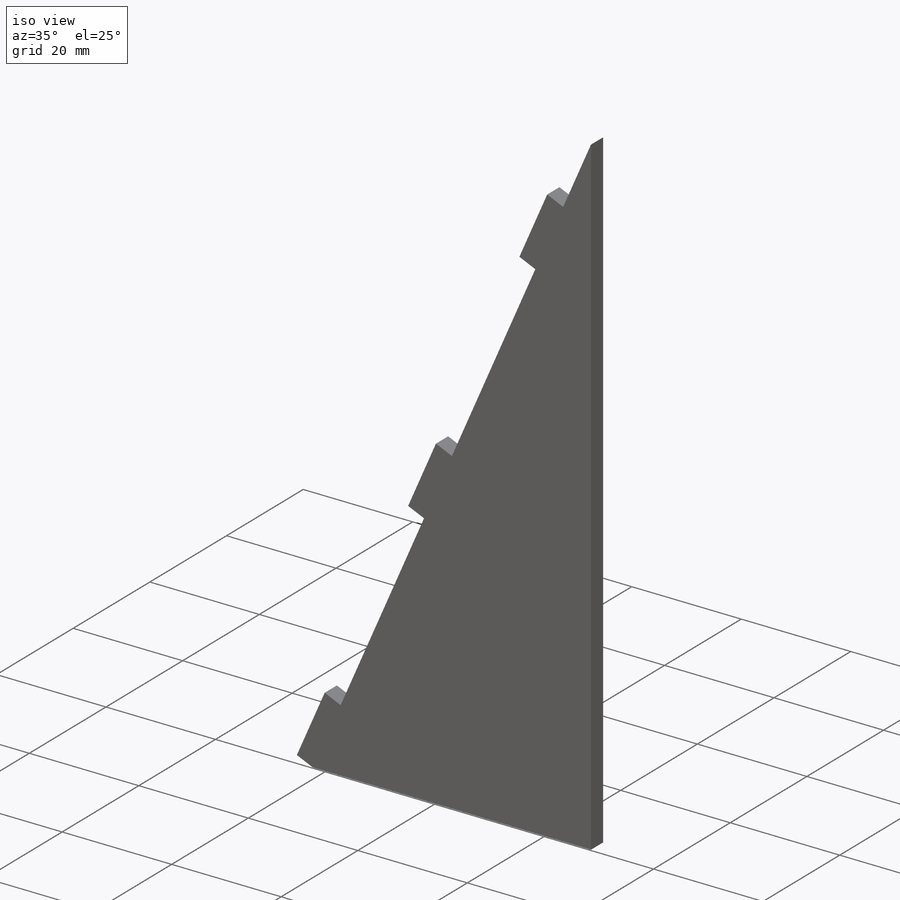
[diagram: iso view]
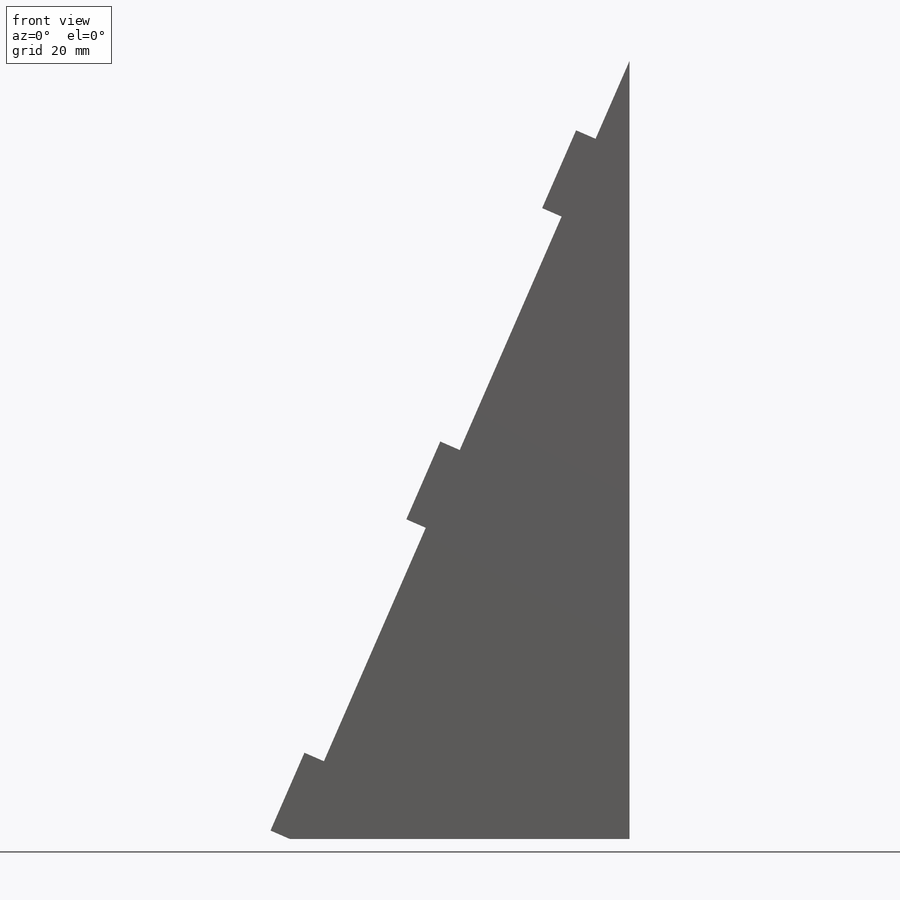
[diagram: front view]
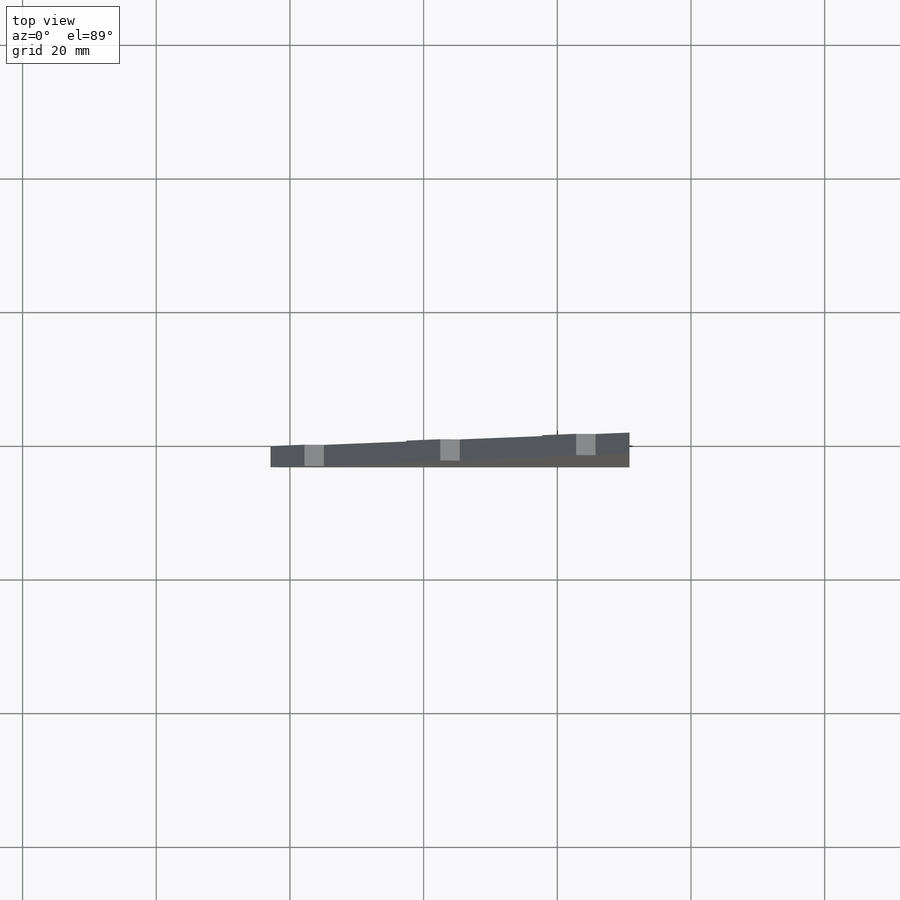
[diagram: top view]
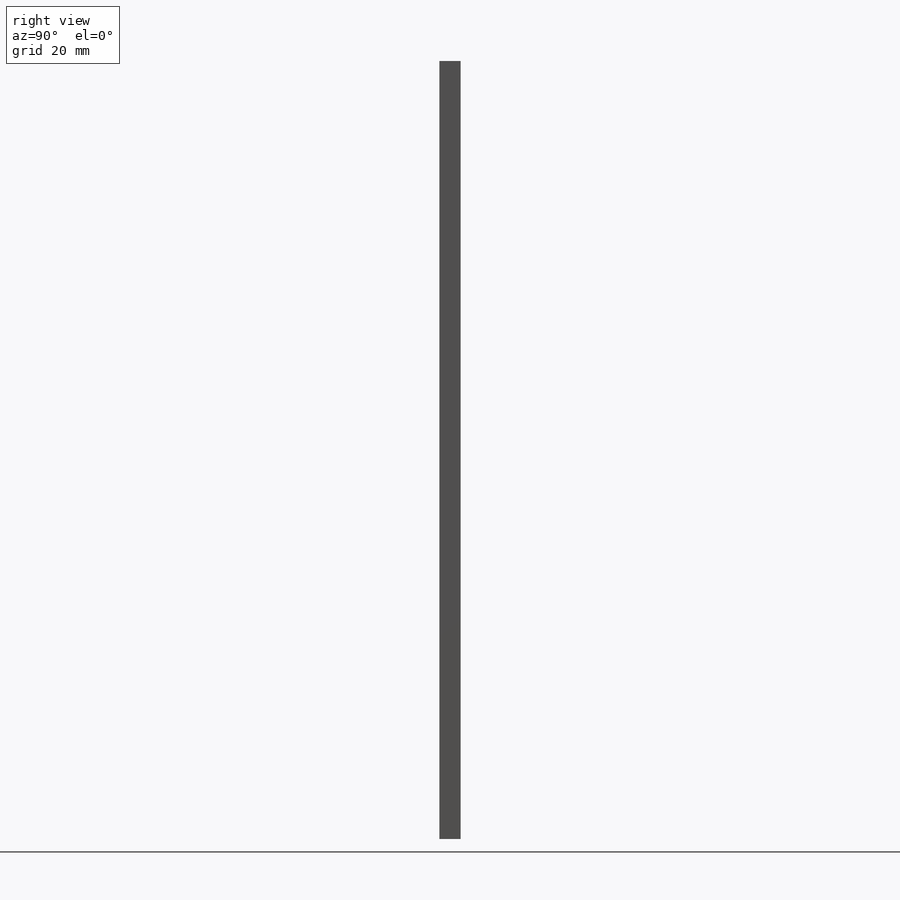
[diagram: right view]
SOLIDWORKS PART (.sldprt)
format: sldprt  version: not decoded by parser v0  size: 120,320 bytes
history: native  units: mm
features: sketch x2, extrude x2, material x1, pattern_linear x1 (+16 scaffold rows collapsed)
feature tree (22):
  scaffold x16  (default folders/planes/origin — collapsed)
  material  "Material <not specified>"
  sketch  "Sketch1"  dims[D1=50.8mm D2=127.0mm]
  extrude  "Extrude1"  Depth=3.175mm
  sketch  "Sketch2"  dims[D1=12.7mm D2=3.175mm]
  extrude  "Extrude2"  Depth=3.175mm
  pattern_linear  "LPattern1"  Count1=3 Count2=1 Spacing1=50.8mm Spacing2=10mm
decode coverage: 5 of 5 modeling features carry decoded parameters
note: suppression state not decoded; provenance and decode notes live in map.json
